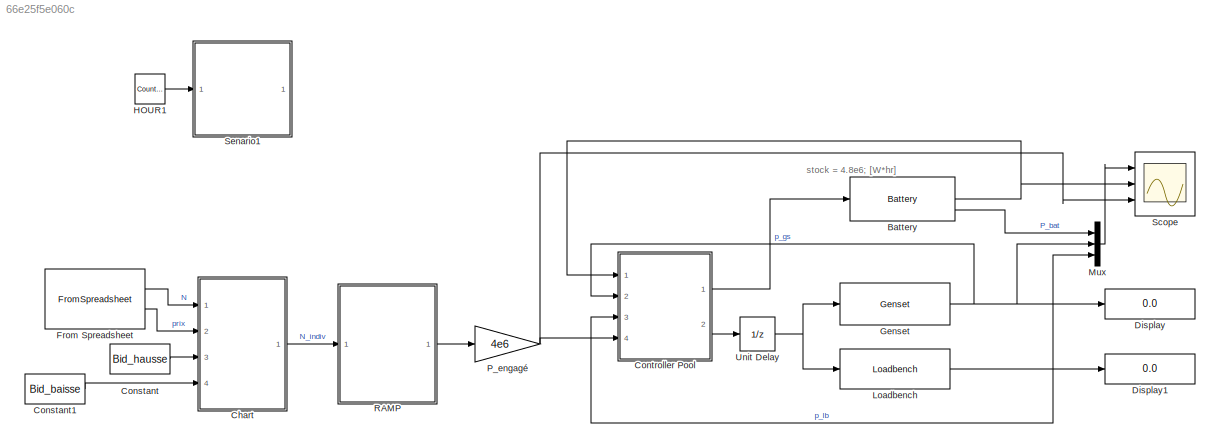
MODEL slx_66e25f5e060c
KIND model
CONFIG AbsTol = auto
CONFIG EnableMultiTasking = off
CONFIG FixedStep = auto
CONFIG MaxStep = auto
CONFIG MinStep = auto
CONFIG RelTol = 1e-3
CONFIG SampleTimeConstraint = Unconstrained
CONFIG SolverName = VariableStepAuto
CONFIG StartTime = 0.0
CONFIG StopTime = 86000
BLOCK [Reference] Battery  REF=Assets/Battery
  Ports = [1, 3]
  SourceBlock = Assets/Battery
  SourceProductName = My Library
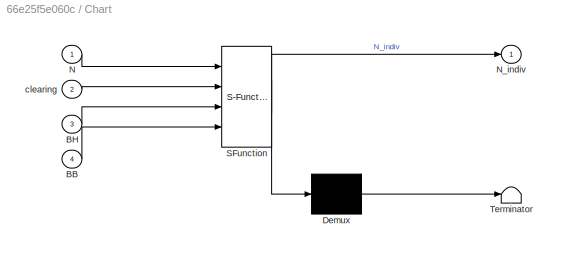
BLOCK [SubSystem] Chart
  ErrorFcn = Stateflow.Translate.translate
  PermitHierarchicalResolution = ExplicitOnly
  Ports = [4, 1]
  RequestExecContextInheritance = off
  SFBlockType = Chart
  TreatAsAtomicUnit = on
BLOCK [Demux] Chart/ Demux 
  Outputs = 1
  Ports = [1, 1]
BLOCK [S-Function] Chart/ SFunction 
  EnableBusSupport = on
  FunctionName = sf_sfun
  PortCounts = [4 2]
  Ports = [4, 2]
  SFcnIsStateOwnerBlock = off
  SFunctionDeploymentMode = off
  Tag = Stateflow S-Function 3
BLOCK [Terminator] Chart/ Terminator 
BLOCK [Inport] Chart/BB
  Port = 4
BLOCK [Inport] Chart/BH
  Port = 3
BLOCK [Inport] Chart/N
BLOCK [Outport] Chart/N_indiv
BLOCK [Inport] Chart/clearing
  Port = 2
BLOCK [Constant] Constant
  Value = Bid_hausse
BLOCK [Constant] Constant1
  Value = Bid_baisse
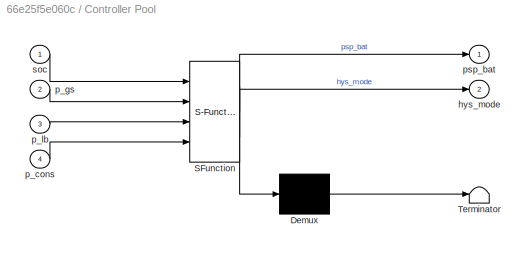
BLOCK [SubSystem] Controller Pool
  ErrorFcn = Stateflow.Translate.translate
  PermitHierarchicalResolution = ExplicitOnly
  Ports = [4, 2]
  RequestExecContextInheritance = off
  SFBlockType = Chart
  TreatAsAtomicUnit = on
BLOCK [Demux] Controller Pool/ Demux 
  Outputs = 1
  Ports = [1, 1]
BLOCK [S-Function] Controller Pool/ SFunction 
  EnableBusSupport = on
  FunctionName = sf_sfun
  Parameters = hys_max,hys_min,max_soc,min_soc
  PortCounts = [4 3]
  Ports = [4, 3]
  SFcnIsStateOwnerBlock = off
  SFunctionDeploymentMode = off
  Tag = Stateflow S-Function 1
BLOCK [Terminator] Controller Pool/ Terminator 
BLOCK [Outport] Controller Pool/hys_mode
  Port = 2
BLOCK [Inport] Controller Pool/p_cons
  Port = 4
BLOCK [Inport] Controller Pool/p_gs
  Port = 2
BLOCK [Inport] Controller Pool/p_lb
  Port = 3
BLOCK [Outport] Controller Pool/psp_bat
BLOCK [Inport] Controller Pool/soc
BLOCK [Display] Display
  Decimation = 1
  Ports = [1]
BLOCK [Display] Display1
  Decimation = 1
  Ports = [1]
BLOCK [FromSpreadsheet] From Spreadsheet
  FileName = signal_N.xlsx
  Ports = [0, 2]
  SheetName = Feuil1
BLOCK [Reference] Genset  REF=Assets/Genset
  Ports = [1, 1]
  SourceBlock = Assets/Genset
  SourceProductName = My Library
BLOCK [Reference] HOUR1  REF=simulink/Sources/Counter
Limited
  Commented = on
  Ports = [0, 1]
  SourceBlock = simulink/Sources/Counter\nLimited
  SourceProductBaseCode = SL
  SourceType = Counter Limited
BLOCK [Reference] Loadbench  REF=Assets/Loadbench
  Ports = [1, 1]
  SourceBlock = Assets/Loadbench
  SourceProductName = My Library
BLOCK [Mux] Mux
  DisplayOption = bar
  Inputs = 3
  Ports = [3, 1]
BLOCK [Gain] P_engagé
  Gain = 4e6
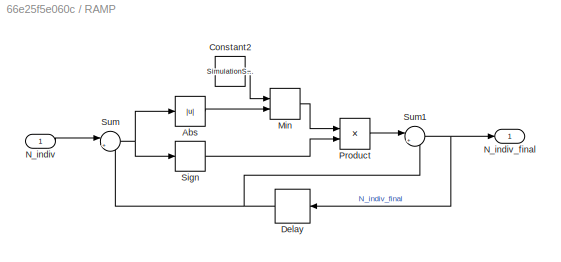
BLOCK [SubSystem] RAMP
  Ports = [1, 1]
  RequestExecContextInheritance = off
BLOCK [Abs] RAMP/Abs
  NameLocation = top
  SaturateOnIntegerOverflow = off
BLOCK [Constant] RAMP/Constant2
  Value = SimulationStep/300
BLOCK [Delay] RAMP/Delay
  DelayLength = 1
  InputPortMap = u0
  Ports = [1, 1]
BLOCK [MinMax] RAMP/Min
  Inputs = 2
  Ports = [2, 1]
BLOCK [Inport] RAMP/N_indiv
BLOCK [Outport] RAMP/N_indiv_final
BLOCK [Product] RAMP/Product
  Ports = [2, 1]
BLOCK [Signum] RAMP/Sign
BLOCK [Sum] RAMP/Sum
  Inputs = |+-
  Ports = [2, 1]
BLOCK [Sum] RAMP/Sum1
  Inputs = |++
  Ports = [2, 1]
BLOCK [Scope] Scope
  Floating = off
  NumInputPorts = 3
  Ports = [3]
  ScopeSpecificationString = Simulink.scopes.TimeScopeBlockCfg('CurrentConfiguration', extmgr.ConfigurationSet(extmgr.Configuration('Core','General UI',true),extmgr.Configuration('Core','Source UI',true),extmgr.Configuration('Sources','WiredSimulink',true),extmgr.Configuration('Visuals','Time Domain',true,'SerializedDisplays',{struct('MinYLimReal','-5000000.00000','MaxYLimReal','5000000.00000','YLabelReal','','MinYLimMag','  ...<+2920ch>
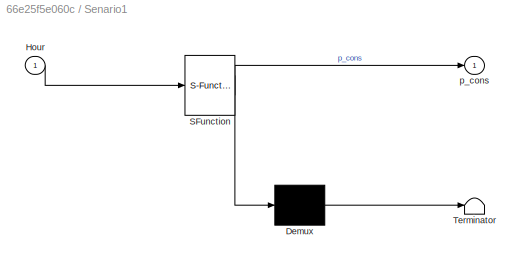
BLOCK [SubSystem] Senario1
  Commented = on
  ErrorFcn = Stateflow.Translate.translate
  PermitHierarchicalResolution = ExplicitOnly
  Ports = [1, 1]
  RequestExecContextInheritance = off
  SFBlockType = Chart
  TreatAsAtomicUnit = on
BLOCK [Demux] Senario1/ Demux 
  Outputs = 1
  Ports = [1, 1]
BLOCK [S-Function] Senario1/ SFunction 
  EnableBusSupport = on
  FunctionName = sf_sfun
  PortCounts = [1 2]
  Ports = [1, 2]
  SFcnIsStateOwnerBlock = off
  SFunctionDeploymentMode = off
  Tag = Stateflow S-Function 2
BLOCK [Terminator] Senario1/ Terminator 
BLOCK [Inport] Senario1/Hour
BLOCK [Outport] Senario1/p_cons
BLOCK [UnitDelay] Unit Delay
  HasFrameUpgradeWarning = on
ANNOTATION (root): stock = 4.8e6; [W*hr]
NET Battery:2 -> Controller Pool:1, Scope:2
LINE Battery:3 -> Mux:1
LINE Chart:1 -> RAMP:1
LINE Constant1:1 -> Chart:4
LINE Constant:1 -> Chart:3
LINE Controller Pool:1 -> Battery:1
LINE Controller Pool:2 -> Unit Delay:1
LINE From Spreadsheet:1 -> Chart:1
LINE From Spreadsheet:2 -> Chart:2
NET Genset:1 -> Controller Pool:2, Display:1, Mux:2
LINE HOUR1:1 -> Senario1:1
NET Loadbench:1 -> Controller Pool:3, Display1:1, Mux:3
LINE Mux:1 -> Scope:1
NET P_engagé:1 -> Controller Pool:4, Scope:3
LINE RAMP/Abs:1 -> RAMP/Min:2
LINE RAMP/Constant2:1 -> RAMP/Min:1
NET RAMP/Delay:1 -> RAMP/Sum1:2, RAMP/Sum:2
LINE RAMP/Min:1 -> RAMP/Product:1
LINE RAMP/N_indiv:1 -> RAMP/Sum:1
LINE RAMP/Product:1 -> RAMP/Sum1:1
LINE RAMP/Sign:1 -> RAMP/Product:2
NET RAMP/Sum1:1 -> RAMP/Delay:1, RAMP/N_indiv_final:1
NET RAMP/Sum:1 -> RAMP/Abs:1, RAMP/Sign:1
LINE RAMP:1 -> P_engagé:1
NET Unit Delay:1 -> Genset:1, Loadbench:1
note: NET lines group one-source signal fan-out (src -> all destinations, sorted); 1:1 wires keep LINE
CHART Controller Pool states=19 transitions=27
  STATE_LABEL '?'
  STATE_LABEL 'Battery1\nentry : p_cons = psp_bat;\nduring :\npsp_gs = 0;\npsp_lb = 0;\n'
  STATE_LABEL 'Genset1\nentry : p_cons = psp_gs;\nduring :\npsp_lb = 0;\npsp_bat = 0;\n'
  STATE_LABEL 'Loadbench1\nentry : p_cons = psp_lb\nduring :\npsp_gs = 0;\npsp_bat = 0;\n'
  STATE_LABEL '[SOC < min_soc && p_cons >=0]'
  STATE_LABEL '[min_soc < SOC < max_soc]'
  STATE_LABEL '[SOC > max_soc && p_cons <=0]'
  STATE_LABEL '[min_soc < SOC < max_soc]'
  STATE_LABEL 'Battery1\nentry : p_cons = psp_bat;\nduring :\npsp_gs = 0;\npsp_lb = 0;\n'
  STATE_LABEL 'Genset1\nentry : p_cons = psp_gs;\nduring :\npsp_lb = 0;\npsp_bat = 0;\n'
  STATE_LABEL 'Loadbench1\nentry : p_cons = psp_lb\nduring :\npsp_gs = 0;\npsp_bat = 0;\n'
  STATE_LABEL 'Hysteresis_mode'
  STATE_LABEL 'Mode___1\nen : hys_mode = -1;\ndu : psp_bat = p_cons - p_lb - p_gs;'
  STATE_LABEL 'Mode_0\nen : hys_mode = 0;\ndu : psp_bat = p_cons - p_lb - p_gs;'
  STATE_LABEL 'Mode_1\nen : hys_mode = 1;\ndu : psp_bat = p_cons - p_lb - p_gs;'
  STATE_LABEL '[soc <= min_soc]'
  STATE_LABEL '[soc >= max_soc]'
  STATE_LABEL '[soc >= hys_min]'
  STATE_LABEL '[soc <= hys_max]'
  STATE_LABEL 'Mode___1\nen : hys_mode = -1;\ndu : psp_bat = p_cons - p_lb - p_gs;'
  STATE_LABEL 'Mode_0\nen : hys_mode = 0;\ndu : psp_bat = p_cons - p_lb - p_gs;'
  STATE_LABEL 'Mode_1\nen : hys_mode = 1;\ndu : psp_bat = p_cons - p_lb - p_gs;'
  STATE_LABEL 'Dispatcher1\n'
  STATE_LABEL 'Battery1\nen :\nhys_mode = 0;\np_cons = psp_bat;'
  STATE_LABEL 'LB_off\nen : hys_mode = 0;\ndu : p_cons = psp_bat;'
  STATE_LABEL 'LB_on\nen : hys_mode = 1;\ndu : p_cons = psp_lb;'
  STATE_LABEL 'GS_on\nen : hys_mode = -1;\ndu : p_cons = psp_gs;'
  STATE_LABEL 'GS_off\nen : hys_mode = 0;\ndu : p_cons = psp_bat;'
  STATE_LABEL '[soc >= hys_min]'
  STATE_LABEL '[soc >= hys_max]'
  STATE_LABEL '[soc <= hys_min]'
  STATE_LABEL '[soc <= hys_max]'
  STATE_LABEL 'Battery1\nen :\nhys_mode = 0;\np_cons = psp_bat;'
  STATE_LABEL 'LB_off\nen : hys_mode = 0;\ndu : p_cons = psp_bat;'
  STATE_LABEL 'LB_on\nen : hys_mode = 1;\ndu : p_cons = psp_lb;'
  STATE_LABEL 'GS_on\nen : hys_mode = -1;\ndu : p_cons = psp_gs;'
  STATE_LABEL 'GS_off\nen : hys_mode = 0;\ndu : p_cons = psp_bat;'
  STATE_LABEL 'start_order'
  STATE_LABEL '% start_order'
  STATE_LABEL '[psp_gs > 0]'
CHART Senario1 states=2 transitions=3
  STATE_LABEL 'decharge\nentry : p_cons = 4.5;'
  STATE_LABEL 'charge\nentry : p_cons = -4.5;\n'
CHART Chart states=6 transitions=10
  STATE_LABEL 'Baisse\nen : clearing <= BB;\n N_indiv = -1;'
  STATE_LABEL 'N_0\nen : N_indiv = 0;\n'
  STATE_LABEL 'Hausse\nen :  clearing >= BH;\n  N_indiv = 1;\n'
  STATE_LABEL 'Baisse1\nen : N_indiv = -1;'
  STATE_LABEL 'N_01\nen : N_indiv = 0;\n'
  STATE_LABEL 'Hausse1\nen : N_indiv = 1;\n'
CHART  states=0 transitions=0
CHART  states=0 transitions=0
CHART  states=0 transitions=0
